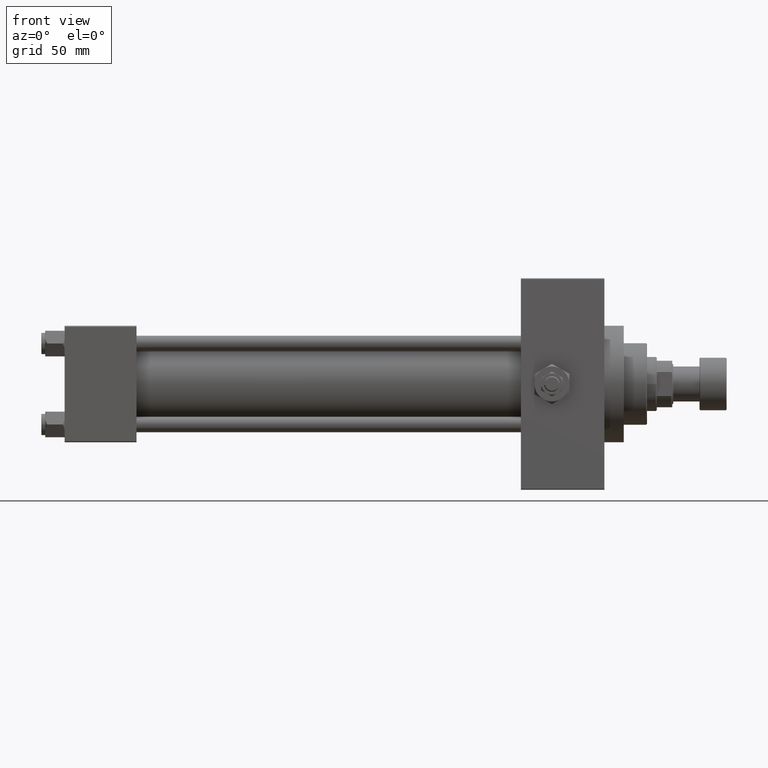
[diagram: clean part render]
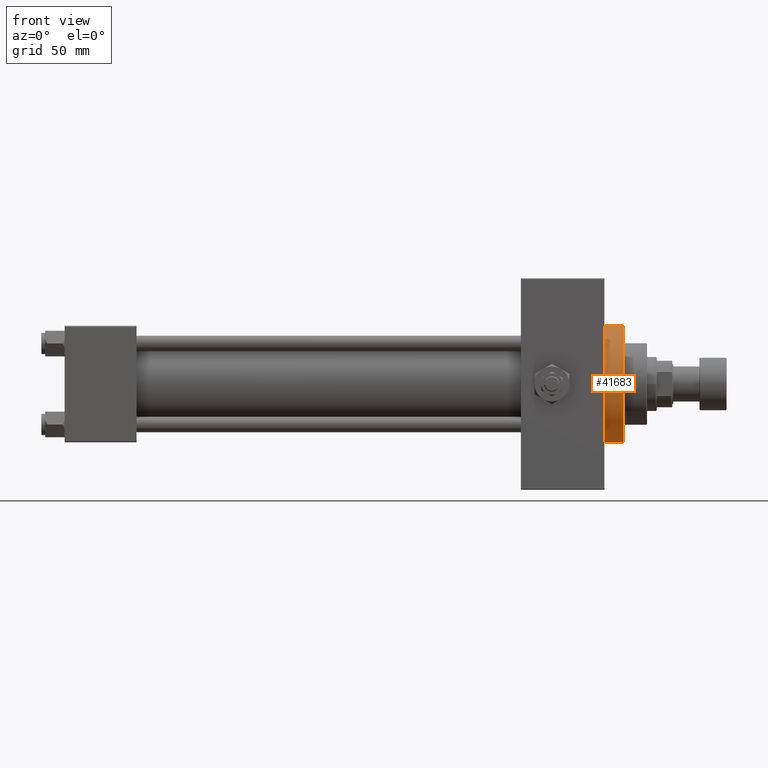
[diagram: same view with one face highlighted and labeled with its STEP entity id]
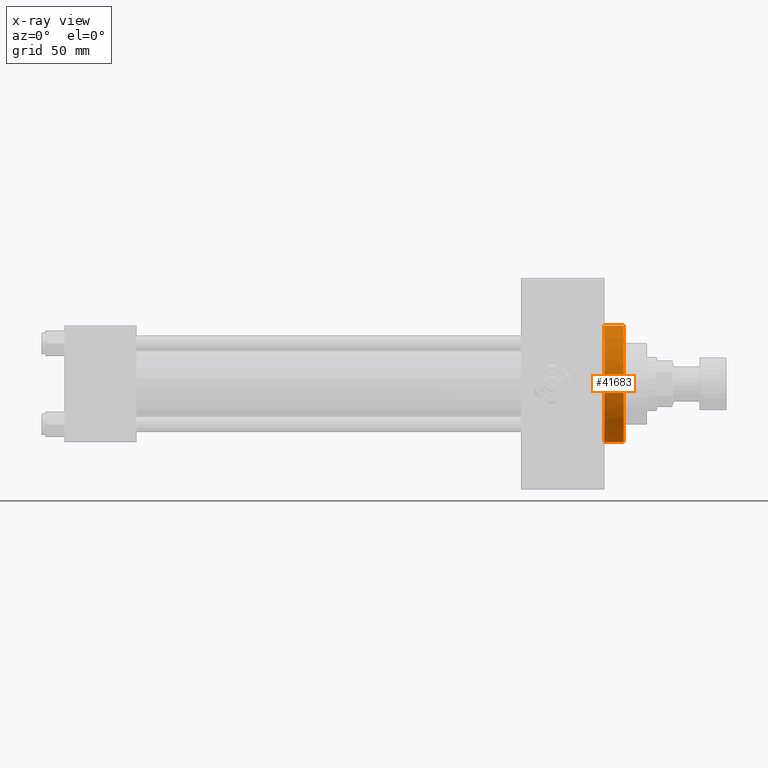
[diagram: x-ray of the same camera — body ghosted, the highlighted face saturated]
A machine part, front view. The second image highlights one B-rep face of the part: STEP entity #41683.
The next image is the same camera in x-ray: the body ghosted, the highlighted face saturated — about 0% of this face is hidden behind the body in this view.
In plain terms, the highlighted cylindrical surface (partial cylindrical patch) has radius 30 mm, axis along (-1, -0, -0).
Its self-contained STEP definition (entity closure, byte-faithful):
#1726 = ORIENTED_EDGE ( 'NONE', *, *, #45119, .T. ) ;
#2164 = DIRECTION ( 'NONE',  ( 0.000000000000000000, 0.000000000000000000, -1.000000000000000000 ) ) ;
#2547 = DIRECTION ( 'NONE',  ( 0.000000000000000000, 0.000000000000000000, -1.000000000000000000 ) ) ;
#2809 = VERTEX_POINT ( 'NONE', #5942 ) ;
#3916 = AXIS2_PLACEMENT_3D ( 'NONE', #30307, #11293, #7555 ) ;
#5245 = FACE_OUTER_BOUND ( 'NONE', #20016, .T. ) ;
#5942 = CARTESIAN_POINT ( 'NONE',  ( 288.0000000000000568, 0.000000000000000000, 30.00000000000000000 ) ) ;
#6992 = CARTESIAN_POINT ( 'NONE',  ( 288.0000000000000568, 0.000000000000000000, 30.00000000000000000 ) ) ;
#7555 = DIRECTION ( 'NONE',  ( 0.000000000000000000, 0.000000000000000000, -1.000000000000000000 ) ) ;
#10465 = CARTESIAN_POINT ( 'NONE',  ( 288.0000000000000568, 3.673940397442059178E-15, -30.00000000000000000 ) ) ;
#10697 = VERTEX_POINT ( 'NONE', #37194 ) ;
#11087 = AXIS2_PLACEMENT_3D ( 'NONE', #40321, #40078, #2547 ) ;
#11293 = DIRECTION ( 'NONE',  ( 1.000000000000000000, 0.000000000000000000, 0.000000000000000000 ) ) ;
#12717 = CARTESIAN_POINT ( 'NONE',  ( 288.0000000000000568, 3.673940397442059178E-15, -30.00000000000000000 ) ) ;
#17734 = LINE ( 'NONE', #10465, #20065 ) ;
#17979 = DIRECTION ( 'NONE',  ( -1.000000000000000000, -0.000000000000000000, -0.000000000000000000 ) ) ;
#19601 = ORIENTED_EDGE ( 'NONE', *, *, #28860, .T. ) ;
#20016 = EDGE_LOOP ( 'NONE', ( #41575, #32315, #23500, #19601, #1726 ) ) ;
#20065 = VECTOR ( 'NONE', #17979, 1000.000000000000000 ) ;
#21235 = CARTESIAN_POINT ( 'NONE',  ( 288.0000000000000568, 0.000000000000000000, 0.000000000000000000 ) ) ;
#22237 = DIRECTION ( 'NONE',  ( -1.000000000000000000, -0.000000000000000000, -0.000000000000000000 ) ) ;
#23500 = ORIENTED_EDGE ( 'NONE', *, *, #29356, .T. ) ;
#27986 = AXIS2_PLACEMENT_3D ( 'NONE', #21235, #28007, #36498 ) ;
#28007 = DIRECTION ( 'NONE',  ( -1.000000000000000000, -0.000000000000000000, -0.000000000000000000 ) ) ;
#28860 = EDGE_CURVE ( 'NONE', #33156, #10697, #35877, .T. ) ;
#29356 = EDGE_CURVE ( 'NONE', #2809, #33156, #33753, .T. ) ;
#30307 = CARTESIAN_POINT ( 'NONE',  ( 288.0000000000000568, 0.000000000000000000, 0.000000000000000000 ) ) ;
#32194 = CARTESIAN_POINT ( 'NONE',  ( 278.0000000000000000, 3.673940397442059178E-15, -30.00000000000000000 ) ) ;
#32315 = ORIENTED_EDGE ( 'NONE', *, *, #32599, .F. ) ;
#32599 = EDGE_CURVE ( 'NONE', #2809, #41199, #47063, .T. ) ;
#33156 = VERTEX_POINT ( 'NONE', #44904 ) ;
#33753 = LINE ( 'NONE', #6992, #42293 ) ;
#35278 = CIRCLE ( 'NONE', #37678, 30.00000000000000000 ) ;
#35877 = CIRCLE ( 'NONE', #11087, 30.00000000000000000 ) ;
#36498 = DIRECTION ( 'NONE',  ( 0.000000000000000000, 0.000000000000000000, 1.000000000000000000 ) ) ;
#37194 = CARTESIAN_POINT ( 'NONE',  ( 278.0000000000000000, -30.00000000000000000, 0.000000000000000000 ) ) ;
#37678 = AXIS2_PLACEMENT_3D ( 'NONE', #48444, #44205, #2164 ) ;
#40078 = DIRECTION ( 'NONE',  ( 1.000000000000000000, 0.000000000000000000, 0.000000000000000000 ) ) ;
#40265 = CYLINDRICAL_SURFACE ( 'NONE', #27986, 30.00000000000000000 ) ;
#40321 = CARTESIAN_POINT ( 'NONE',  ( 278.0000000000000000, 0.000000000000000000, 0.000000000000000000 ) ) ;
#41199 = VERTEX_POINT ( 'NONE', #12717 ) ;
#41575 = ORIENTED_EDGE ( 'NONE', *, *, #44744, .F. ) ;
#41683 = ADVANCED_FACE ( 'NONE', ( #5245 ), #40265, .T. ) ;
#42293 = VECTOR ( 'NONE', #22237, 1000.000000000000000 ) ;
#44205 = DIRECTION ( 'NONE',  ( 1.000000000000000000, 0.000000000000000000, 0.000000000000000000 ) ) ;
#44744 = EDGE_CURVE ( 'NONE', #41199, #45020, #17734, .T. ) ;
#44904 = CARTESIAN_POINT ( 'NONE',  ( 278.0000000000000000, 0.000000000000000000, 30.00000000000000000 ) ) ;
#45020 = VERTEX_POINT ( 'NONE', #32194 ) ;
#45119 = EDGE_CURVE ( 'NONE', #10697, #45020, #35278, .T. ) ;
#47063 = CIRCLE ( 'NONE', #3916, 30.00000000000000000 ) ;
#48444 = CARTESIAN_POINT ( 'NONE',  ( 278.0000000000000000, 0.000000000000000000, 0.000000000000000000 ) ) ;